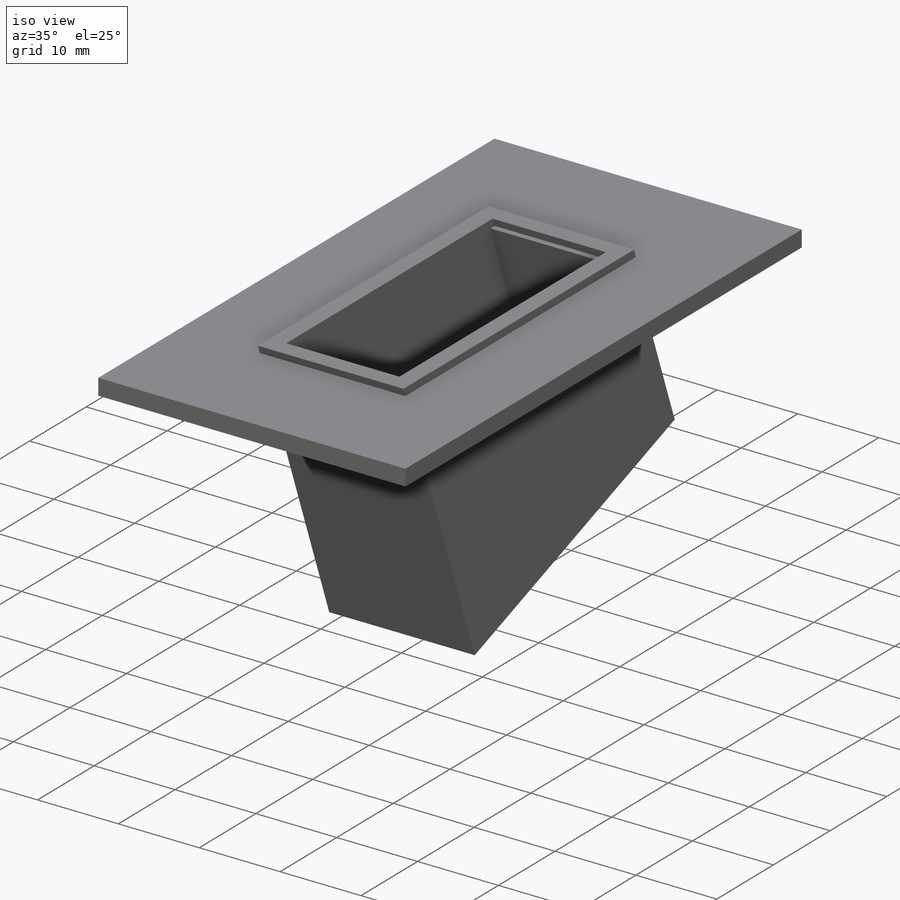
[diagram: iso view]
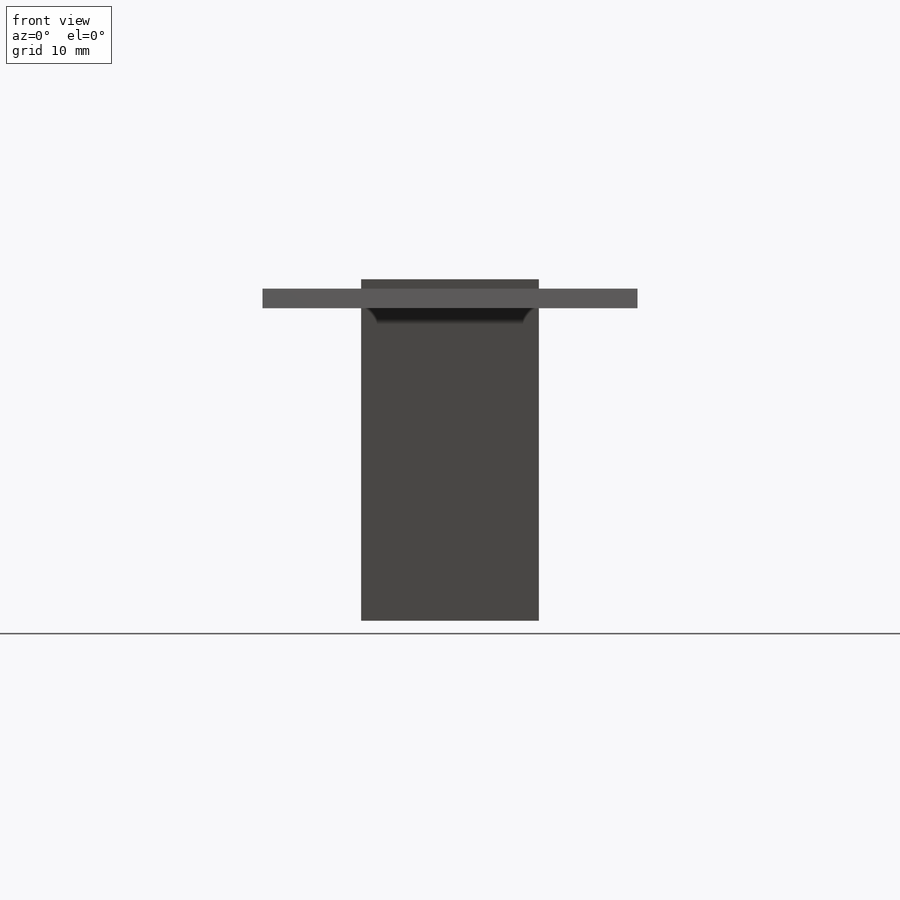
[diagram: front view]
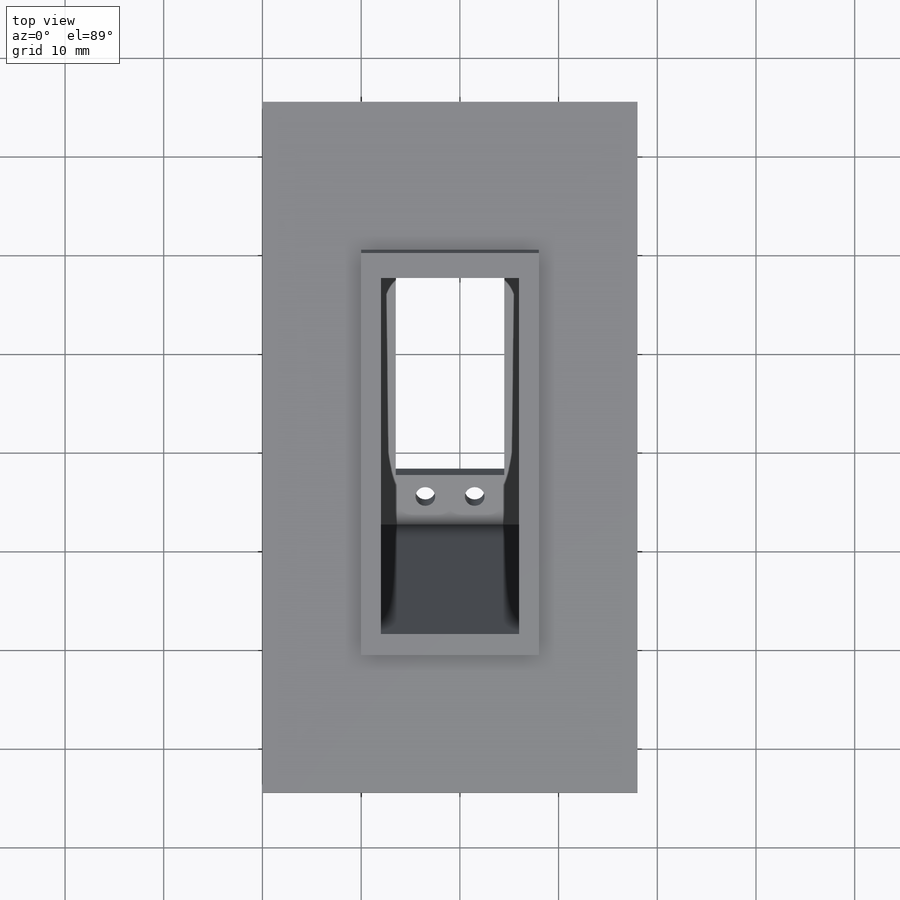
[diagram: top view]
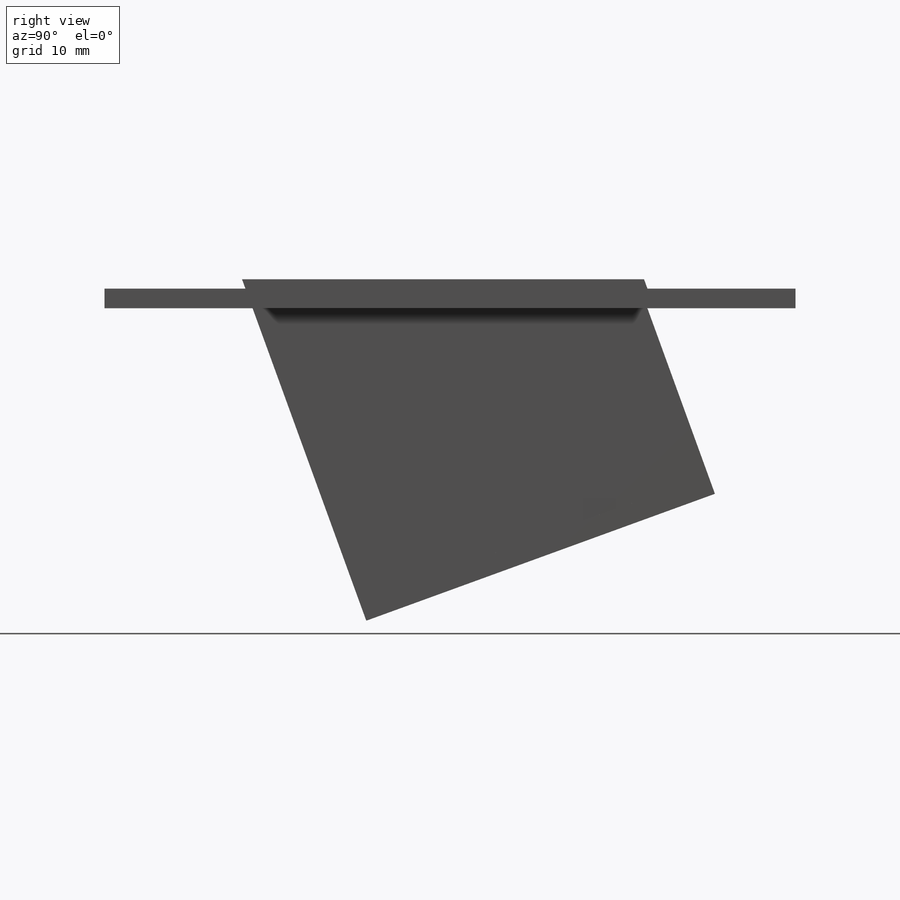
[diagram: right view]
SOLIDWORKS PART (.sldprt)
format: sldprt  version: not decoded by parser v0  size: 243,712 bytes
history: native  units: mm
features: sketch x5, extrude x4, plane x3, material x1, shell x1, cut_extrude x1 (+8 scaffold rows collapsed)
feature tree (23):
  scaffold x8  (default folders/planes/origin — collapsed)
  material  "Matériau <non spécifié>"
  plane  "Plan de face"
  plane  "Plan de dessus"
  plane  "Plan de droite"
  sketch  "Esquisse1"  dims[c1.D1=3.0mm c1.D2=40.0mm c1.D3=45.0mm c2.D3=20.0deg c2.D4=20.0mm c2.D5=15.0mm c2.D6=15.0mm c2.D1=2.0mm]
  extrude  "Boss.-Extru.1"  Depth=18mm
  sketch  "Esquisse3D1"
  extrude  "Boss.-Extru.4"  Depth=1mm
  shell  "Coque7"  Thickness=2mm
  sketch  "Esquisse2"  dims[D3=2.0mm D6=2.0mm D1=11.0mm D2=23.0mm D4=2.3mm D5=2.5mm]
  cut_extrude  "Enlèv. mat.-Extru.1"  [1 undecoded]
  sketch  "Esquisse7"
  extrude  "Boss.-Extru.5"  Depth=10mm
  sketch  "Esquisse8"
  extrude  "Boss.-Extru.6"  Depth=10mm
decode coverage: 7 of 11 modeling features carry decoded parameters
note: 1 parameter value undecoded
note: suppression state not decoded; provenance and decode notes live in map.json
